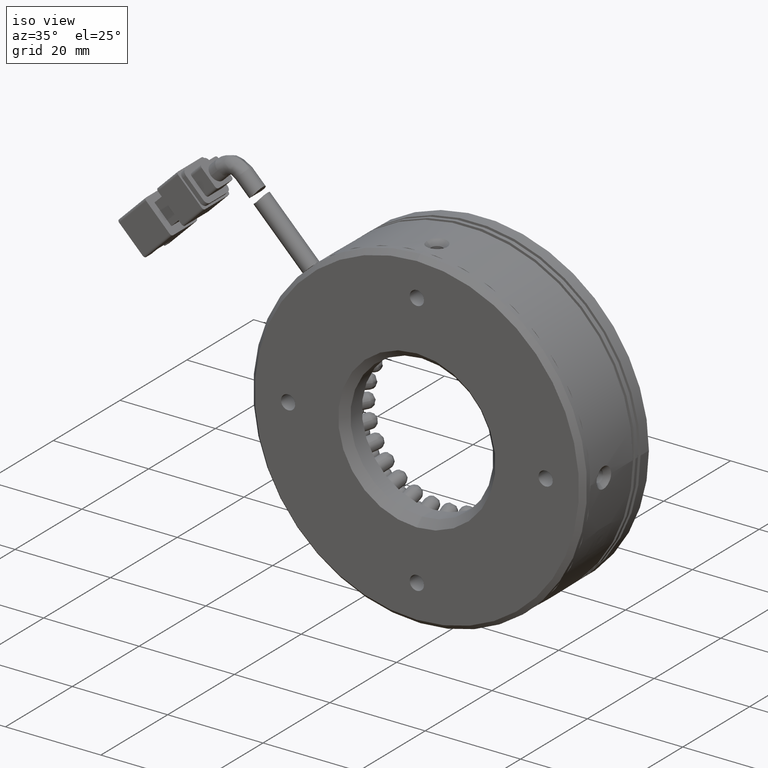
[diagram: clean part render]
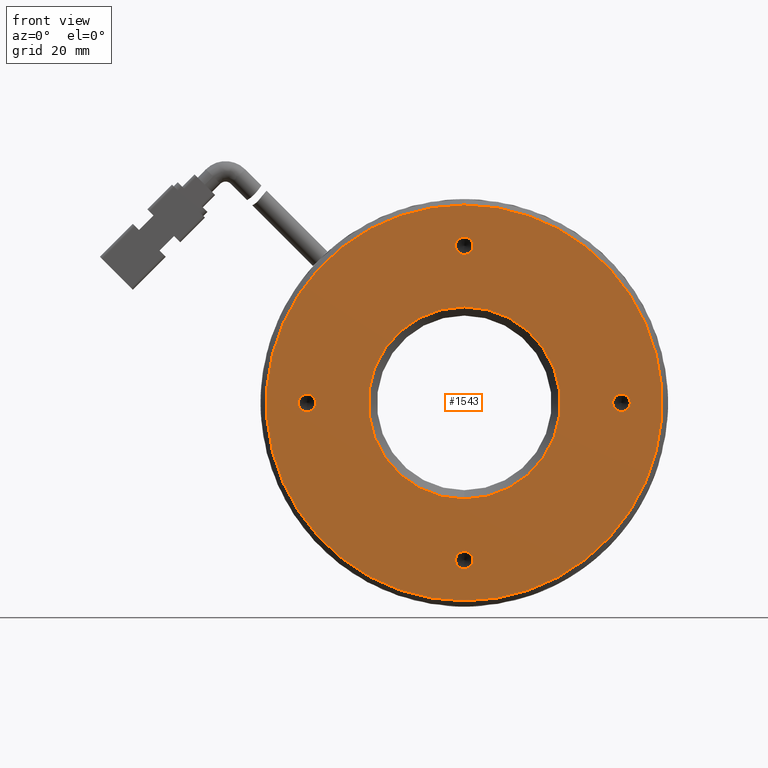
[diagram: tour spotlight — one face highlighted and labeled with its STEP entity id]
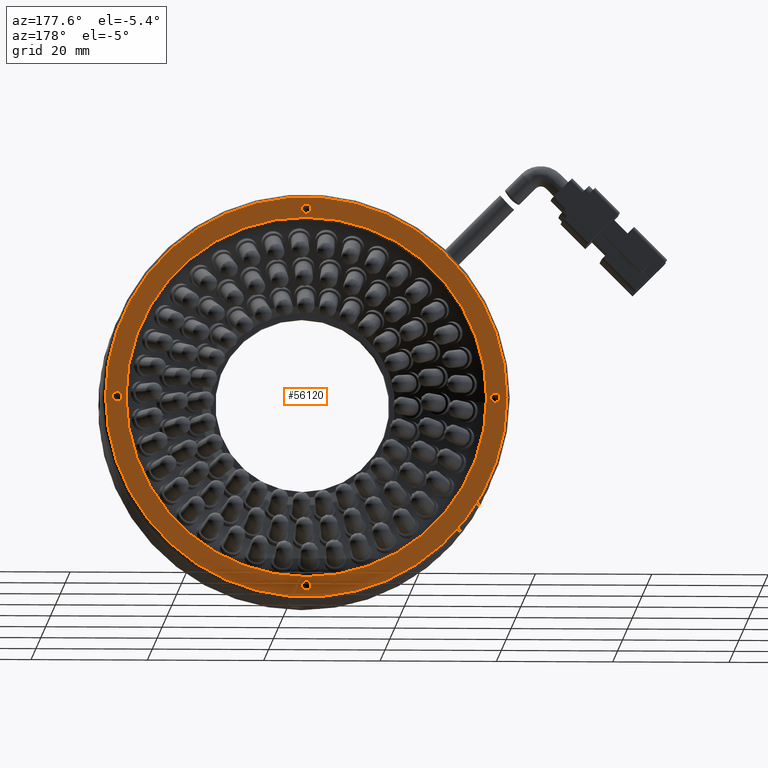
[diagram: tour spotlight — one face highlighted and labeled with its STEP entity id]
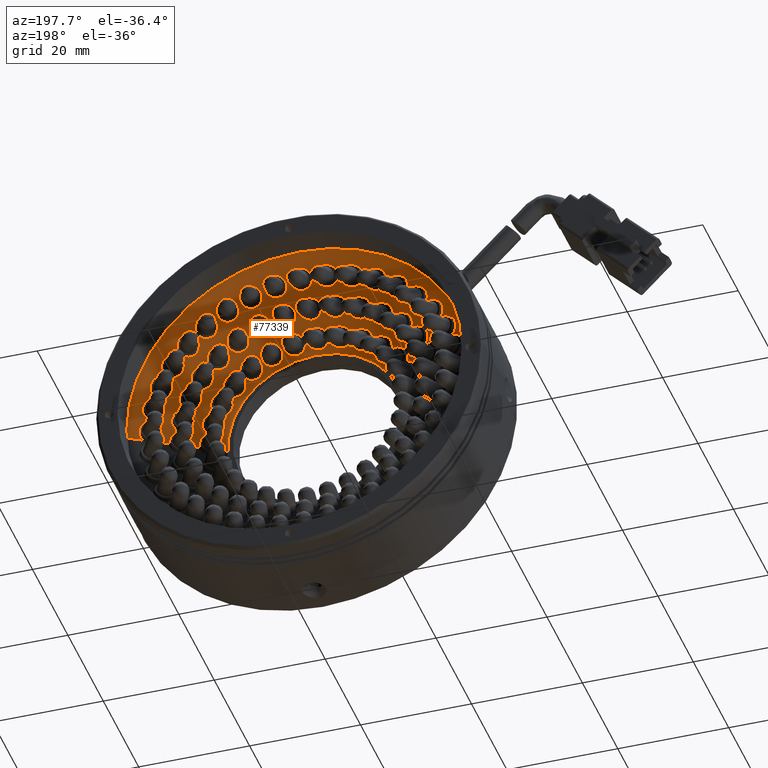
[diagram: tour spotlight — one face highlighted and labeled with its STEP entity id]
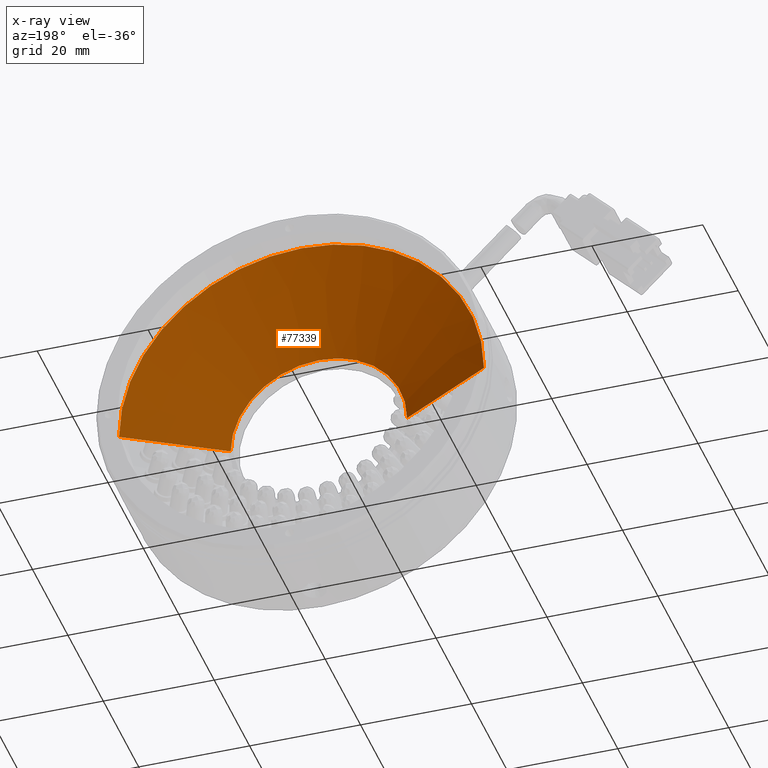
[diagram: x-ray of the same camera — body ghosted, this tour face saturated]
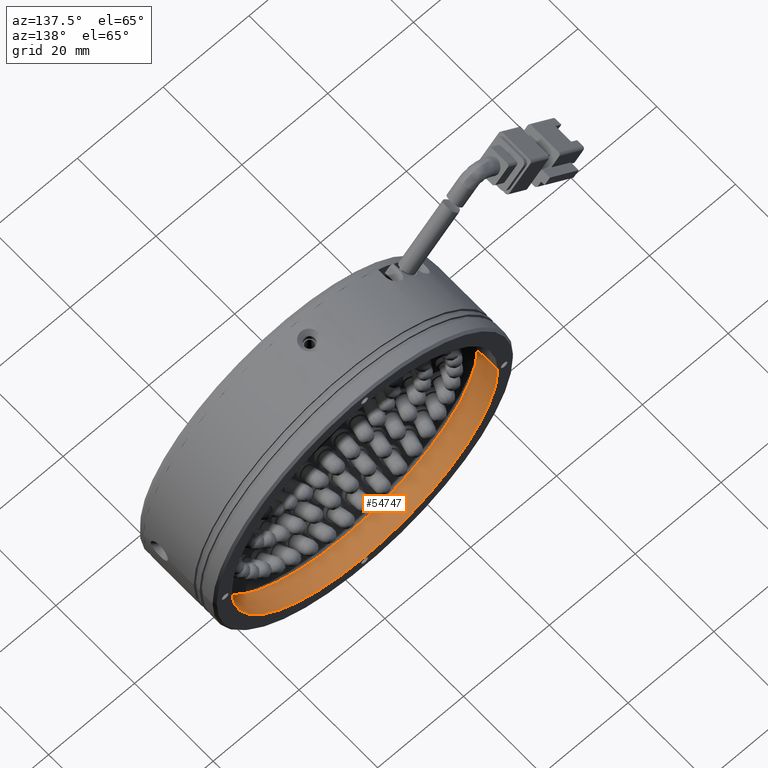
[diagram: tour spotlight — one face highlighted and labeled with its STEP entity id]
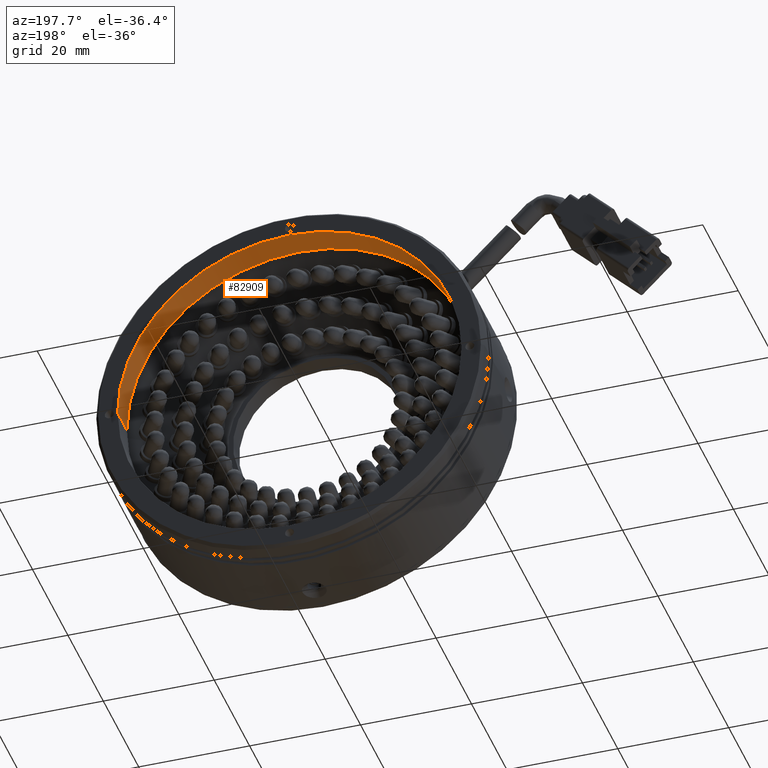
[diagram: tour spotlight — one face highlighted and labeled with its STEP entity id]
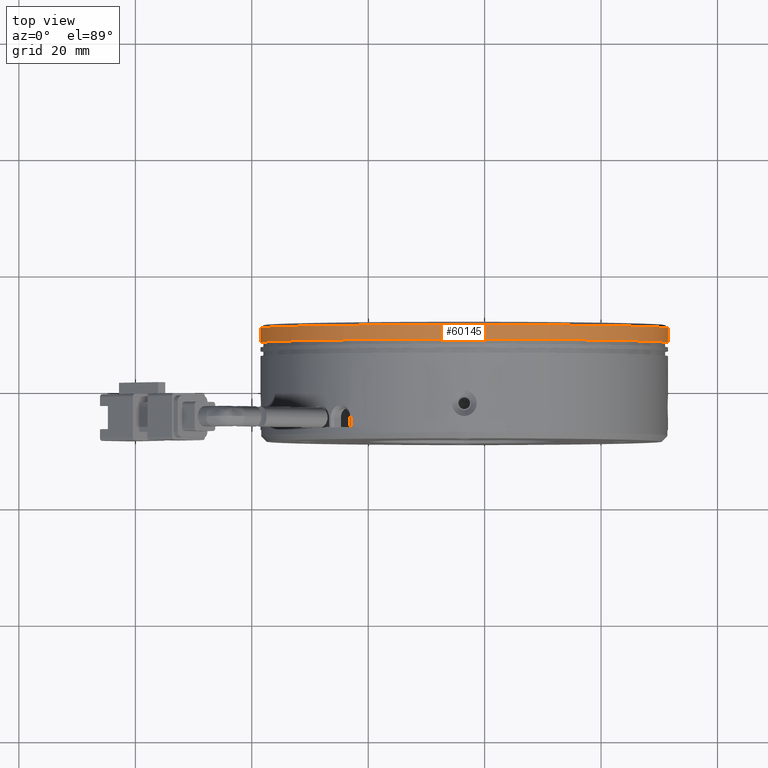
[diagram: tour spotlight — one face highlighted and labeled with its STEP entity id]
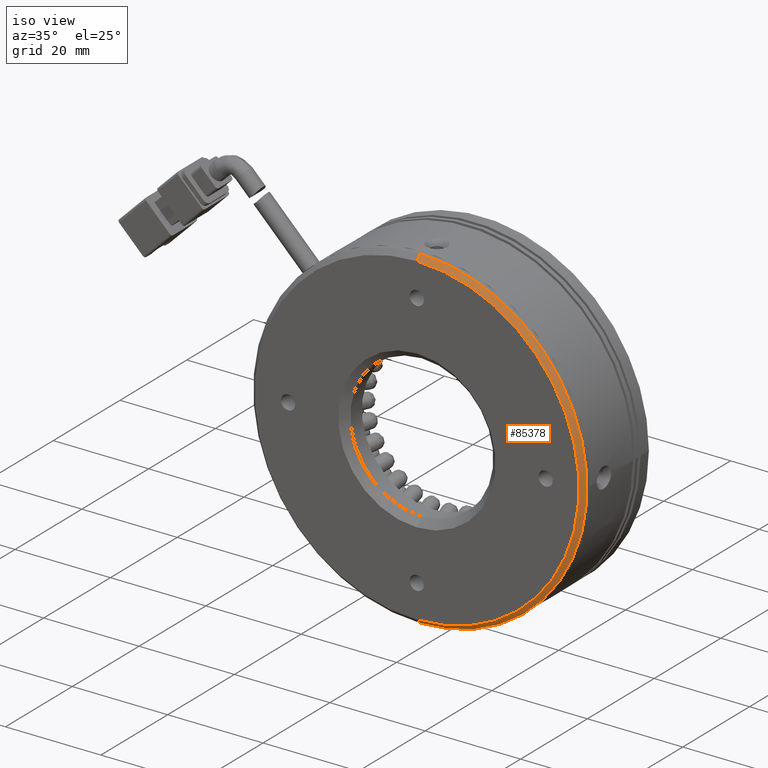
[diagram: tour spotlight — one face highlighted and labeled with its STEP entity id]
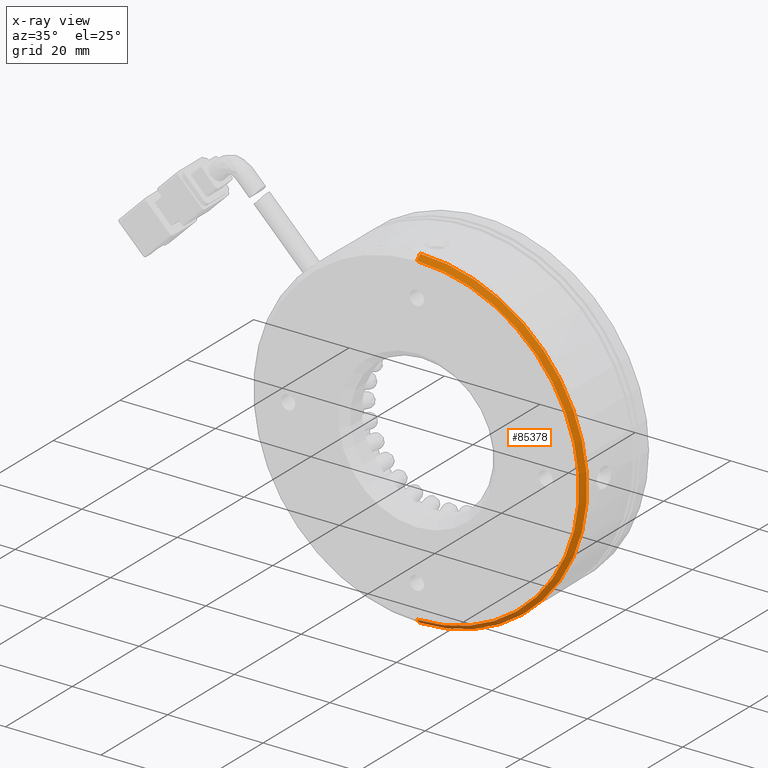
[diagram: x-ray of the same camera — body ghosted, this tour face saturated]
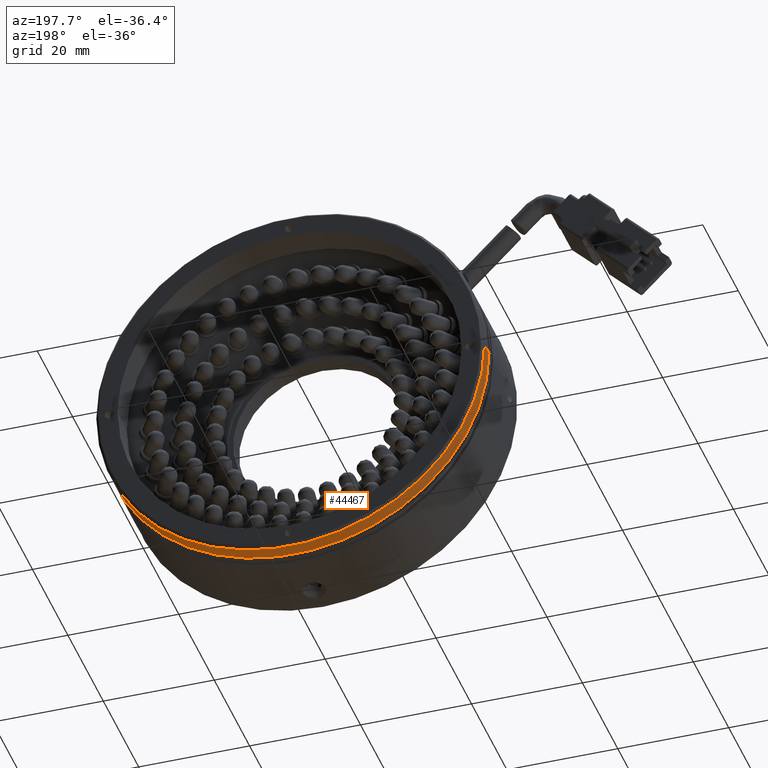
[diagram: tour spotlight — one face highlighted and labeled with its STEP entity id]
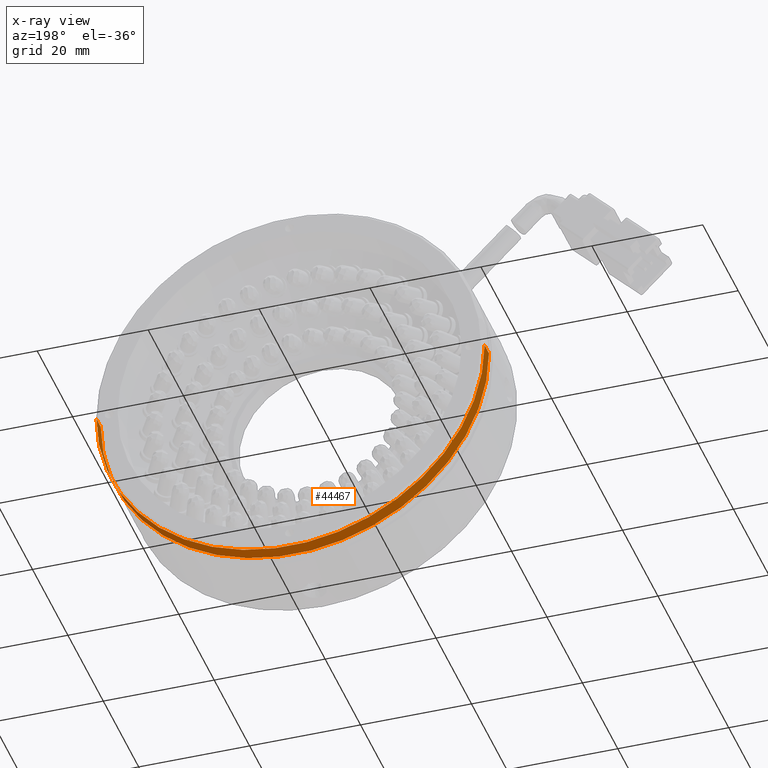
[diagram: x-ray of the same camera — body ghosted, this tour face saturated]
A machine part: a face-by-face anatomy tour. The part has 1954 B-rep faces; the first image is the clean iso view, then the 8 largest visible faces are spotlighted one at a time (largest first), each with its STEP entity span.

Face 1 — front view, entity #1543. In plain terms, the highlighted planar face has unit normal (0, -1, 0).
Definition (entity closure, byte-faithful):
#112 = EDGE_CURVE ( 'NONE', #43990, #50302, #69323, .T. ) ;
#1543 = ADVANCED_FACE ( 'NONE', ( #5520, #59034, #21852, #3327, #75378, #56804 ), #64883, .T. ) ;
#2296 = CARTESIAN_POINT ( 'NONE',  ( -38.49922928709052200, 31.07623868994505800, 0.0000000000000000000 ) ) ;
#3327 = FACE_BOUND ( 'NONE', #22746, .T. ) ;
#3346 = CARTESIAN_POINT ( 'NONE',  ( -30.49922928709055000, 31.07623868994505800, 2.710505431213761100E-017 ) ) ;
#3380 = CARTESIAN_POINT ( 'NONE',  ( -3.499229287090545300, 31.07623868994505800, 27.00000000000000000 ) ) ;
#3947 = DIRECTION ( 'NONE',  ( -0.0000000000000000000, 1.000000000000000000, -0.0000000000000000000 ) ) ;
#5465 = DIRECTION ( 'NONE',  ( 0.0000000000000000000, -1.000000000000000000, -0.0000000000000000000 ) ) ;
#5520 = FACE_BOUND ( 'NONE', #17860, .T. ) ;
#7195 = DIRECTION ( 'NONE',  ( -0.0000000000000000000, 1.000000000000000000, -0.0000000000000000000 ) ) ;
#8481 = EDGE_CURVE ( 'NONE', #56239, #70188, #12562, .T. ) ;
#9340 = DIRECTION ( 'NONE',  ( 0.0000000000000000000, -0.0000000000000000000, -1.000000000000000000 ) ) ;
#10378 = DIRECTION ( 'NONE',  ( 0.0000000000000000000, 0.0000000000000000000, -1.000000000000000000 ) ) ;
#10408 = DIRECTION ( 'NONE',  ( 0.0000000000000000000, 0.0000000000000000000, -1.000000000000000000 ) ) ;
#10466 = VERTEX_POINT ( 'NONE', #24702 ) ;
#10938 = CIRCLE ( 'NONE', #19459, 1.500000000000001300 ) ;
#12562 = CIRCLE ( 'NONE', #74488, 1.499999999999998700 ) ;
#12724 = CARTESIAN_POINT ( 'NONE',  ( -3.499229287090545300, 31.07623868994505800, -27.00000000000000000 ) ) ;
#12830 = EDGE_CURVE ( 'NONE', #82661, #10466, #66394, .T. ) ;
#13396 = ORIENTED_EDGE ( 'NONE', *, *, #33522, .T. ) ;
#13904 = DIRECTION ( 'NONE',  ( 0.0000000000000000000, 1.000000000000000000, 0.0000000000000000000 ) ) ;
#14684 = CARTESIAN_POINT ( 'NONE',  ( 23.50077071290945000, 31.07623868994505800, 1.500000000000001300 ) ) ;
#15289 = AXIS2_PLACEMENT_3D ( 'NONE', #47220, #5465, #54273 ) ;
#16417 = DIRECTION ( 'NONE',  ( 0.0000000000000000000, -1.000000000000000000, -0.0000000000000000000 ) ) ;
#17060 = CIRCLE ( 'NONE', #19999, 1.500000000000001300 ) ;
#17860 = EDGE_LOOP ( 'NONE', ( #62101, #39015 ) ) ;
#19071 = CIRCLE ( 'NONE', #45450, 1.500000000000001300 ) ;
#19459 = AXIS2_PLACEMENT_3D ( 'NONE', #12724, #61593, #19718 ) ;
#19718 = DIRECTION ( 'NONE',  ( 0.0000000000000000000, 0.0000000000000000000, -1.000000000000000000 ) ) ;
#19999 = AXIS2_PLACEMENT_3D ( 'NONE', #81285, #39447, #88258 ) ;
#20134 = EDGE_CURVE ( 'NONE', #10466, #82661, #19071, .T. ) ;
#20280 = EDGE_CURVE ( 'NONE', #70188, #56239, #27737, .T. ) ;
#21305 = CARTESIAN_POINT ( 'NONE',  ( -3.499229287090534200, 31.07623868994505000, -33.99999999999997900 ) ) ;
#21852 = FACE_BOUND ( 'NONE', #74713, .T. ) ;
#22746 = EDGE_LOOP ( 'NONE', ( #79733, #88793 ) ) ;
#22757 = ORIENTED_EDGE ( 'NONE', *, *, #30990, .T. ) ;
#24702 = CARTESIAN_POINT ( 'NONE',  ( 23.50077071290945000, 31.07623868994505800, -1.500000000000001300 ) ) ;
#25645 = CARTESIAN_POINT ( 'NONE',  ( -3.499229287090538600, 31.07623868994505800, -16.50000000000002800 ) ) ;
#26105 = VERTEX_POINT ( 'NONE', #25645 ) ;
#27414 = AXIS2_PLACEMENT_3D ( 'NONE', #2296, #51140, #9340 ) ;
#27737 = CIRCLE ( 'NONE', #53088, 1.499999999999998700 ) ;
#28885 = EDGE_CURVE ( 'NONE', #57185, #71513, #63705, .T. ) ;
#29322 = ORIENTED_EDGE ( 'NONE', *, *, #28885, .T. ) ;
#30990 = EDGE_CURVE ( 'NONE', #71513, #57185, #56039, .T. ) ;
#31460 = EDGE_CURVE ( 'NONE', #32297, #50780, #65738, .T. ) ;
#32297 = VERTEX_POINT ( 'NONE', #43214 ) ;
#33522 = EDGE_CURVE ( 'NONE', #80985, #26105, #34021, .T. ) ;
#34021 = CIRCLE ( 'NONE', #43002, 16.50000000000002800 ) ;
#34893 = CARTESIAN_POINT ( 'NONE',  ( -3.499229287090545300, 31.07623868994505800, 28.50000000000000000 ) ) ;
#35497 = CARTESIAN_POINT ( 'NONE',  ( -3.499229287090545300, 31.07623868994505800, -27.00000000000000000 ) ) ;
#37891 = CIRCLE ( 'NONE', #87340, 16.50000000000002800 ) ;
#38462 = DIRECTION ( 'NONE',  ( 0.0000000000000000000, 1.000000000000000000, 0.0000000000000000000 ) ) ;
#39015 = ORIENTED_EDGE ( 'NONE', *, *, #85526, .T. ) ;
#39447 = DIRECTION ( 'NONE',  ( 0.0000000000000000000, 1.000000000000000000, 0.0000000000000000000 ) ) ;
#40126 = CARTESIAN_POINT ( 'NONE',  ( -3.499229287090545300, 31.07623868994505800, 25.50000000000000000 ) ) ;
#40257 = EDGE_LOOP ( 'NONE', ( #73966, #13396 ) ) ;
#41001 = CARTESIAN_POINT ( 'NONE',  ( -30.49922928709055000, 31.07623868994505800, -1.499999999999998700 ) ) ;
#41259 = CARTESIAN_POINT ( 'NONE',  ( -3.499229287090538600, 31.07623868994505000, 33.99999999999997900 ) ) ;
#41500 = DIRECTION ( 'NONE',  ( 0.0000000000000000000, 1.000000000000000000, 0.0000000000000000000 ) ) ;
#42531 = DIRECTION ( 'NONE',  ( 0.0000000000000000000, 0.0000000000000000000, -1.000000000000000000 ) ) ;
#43002 = AXIS2_PLACEMENT_3D ( 'NONE', #45744, #3947, #52771 ) ;
#43214 = CARTESIAN_POINT ( 'NONE',  ( -3.499229287090545300, 31.07623868994505800, -28.50000000000000000 ) ) ;
#43990 = VERTEX_POINT ( 'NONE', #34893 ) ;
#44380 = EDGE_LOOP ( 'NONE', ( #22757, #29322 ) ) ;
#45450 = AXIS2_PLACEMENT_3D ( 'NONE', #80310, #38462, #87289 ) ;
#45744 = CARTESIAN_POINT ( 'NONE',  ( -3.499229287090538600, 31.07623868994505800, 0.0000000000000000000 ) ) ;
#47220 = CARTESIAN_POINT ( 'NONE',  ( -3.499229287090538600, 31.07623868994505000, 0.0000000000000000000 ) ) ;
#47708 = CARTESIAN_POINT ( 'NONE',  ( -3.499229287090538600, 31.07623868994505800, 0.0000000000000000000 ) ) ;
#50302 = VERTEX_POINT ( 'NONE', #40126 ) ;
#50686 = CARTESIAN_POINT ( 'NONE',  ( -30.49922928709055000, 31.07623868994505800, 1.499999999999998700 ) ) ;
#50780 = VERTEX_POINT ( 'NONE', #73363 ) ;
#51140 = DIRECTION ( 'NONE',  ( 0.0000000000000000000, -1.000000000000000000, 0.0000000000000000000 ) ) ;
#51330 = ORIENTED_EDGE ( 'NONE', *, *, #12830, .T. ) ;
#52192 = DIRECTION ( 'NONE',  ( 0.0000000000000000000, 1.000000000000000000, 0.0000000000000000000 ) ) ;
#52220 = DIRECTION ( 'NONE',  ( 0.0000000000000000000, 1.000000000000000000, 0.0000000000000000000 ) ) ;
#52771 = DIRECTION ( 'NONE',  ( 0.0000000000000000000, 0.0000000000000000000, -1.000000000000000000 ) ) ;
#53088 = AXIS2_PLACEMENT_3D ( 'NONE', #83289, #41500, #90326 ) ;
#54273 = DIRECTION ( 'NONE',  ( 0.0000000000000000000, 0.0000000000000000000, 1.000000000000000000 ) ) ;
#55689 = CARTESIAN_POINT ( 'NONE',  ( 23.50077071290945000, 31.07623868994505800, 0.0000000000000000000 ) ) ;
#55976 = DIRECTION ( 'NONE',  ( 0.0000000000000000000, 0.0000000000000000000, -1.000000000000000000 ) ) ;
#56039 = CIRCLE ( 'NONE', #74282, 33.99999999999997900 ) ;
#56239 = VERTEX_POINT ( 'NONE', #41001 ) ;
#56804 = FACE_OUTER_BOUND ( 'NONE', #44380, .T. ) ;
#57185 = VERTEX_POINT ( 'NONE', #21305 ) ;
#58233 = CARTESIAN_POINT ( 'NONE',  ( -3.499229287090538600, 31.07623868994505000, 0.0000000000000000000 ) ) ;
#58900 = CARTESIAN_POINT ( 'NONE',  ( -3.499229287090536400, 31.07623868994505800, 16.50000000000002800 ) ) ;
#59034 = FACE_BOUND ( 'NONE', #65905, .T. ) ;
#59832 = AXIS2_PLACEMENT_3D ( 'NONE', #55689, #13904, #62736 ) ;
#61593 = DIRECTION ( 'NONE',  ( 0.0000000000000000000, 1.000000000000000000, 0.0000000000000000000 ) ) ;
#62101 = ORIENTED_EDGE ( 'NONE', *, *, #31460, .T. ) ;
#62736 = DIRECTION ( 'NONE',  ( 0.0000000000000000000, 0.0000000000000000000, -1.000000000000000000 ) ) ;
#63705 = CIRCLE ( 'NONE', #15289, 33.99999999999997900 ) ;
#64883 = PLANE ( 'NONE',  #27414 ) ;
#65253 = DIRECTION ( 'NONE',  ( 0.0000000000000000000, 0.0000000000000000000, 1.000000000000000000 ) ) ;
#65738 = CIRCLE ( 'NONE', #78456, 1.500000000000001300 ) ;
#65905 = EDGE_LOOP ( 'NONE', ( #82463, #74840 ) ) ;
#66394 = CIRCLE ( 'NONE', #59832, 1.500000000000001300 ) ;
#69323 = CIRCLE ( 'NONE', #81291, 1.500000000000001300 ) ;
#70188 = VERTEX_POINT ( 'NONE', #50686 ) ;
#71513 = VERTEX_POINT ( 'NONE', #41259 ) ;
#73363 = CARTESIAN_POINT ( 'NONE',  ( -3.499229287090545300, 31.07623868994505800, -25.50000000000000000 ) ) ;
#73966 = ORIENTED_EDGE ( 'NONE', *, *, #82100, .T. ) ;
#74282 = AXIS2_PLACEMENT_3D ( 'NONE', #58233, #16417, #65253 ) ;
#74488 = AXIS2_PLACEMENT_3D ( 'NONE', #3346, #52192, #10378 ) ;
#74713 = EDGE_LOOP ( 'NONE', ( #74866, #51330 ) ) ;
#74840 = ORIENTED_EDGE ( 'NONE', *, *, #112, .T. ) ;
#74866 = ORIENTED_EDGE ( 'NONE', *, *, #20134, .T. ) ;
#75378 = FACE_BOUND ( 'NONE', #40257, .T. ) ;
#78456 = AXIS2_PLACEMENT_3D ( 'NONE', #35497, #84294, #42531 ) ;
#79733 = ORIENTED_EDGE ( 'NONE', *, *, #8481, .T. ) ;
#80310 = CARTESIAN_POINT ( 'NONE',  ( 23.50077071290945000, 31.07623868994505800, 0.0000000000000000000 ) ) ;
#80985 = VERTEX_POINT ( 'NONE', #58900 ) ;
#81285 = CARTESIAN_POINT ( 'NONE',  ( -3.499229287090545300, 31.07623868994505800, 27.00000000000000000 ) ) ;
#81291 = AXIS2_PLACEMENT_3D ( 'NONE', #3380, #52220, #10408 ) ;
#82100 = EDGE_CURVE ( 'NONE', #26105, #80985, #37891, .T. ) ;
#82463 = ORIENTED_EDGE ( 'NONE', *, *, #89513, .T. ) ;
#82661 = VERTEX_POINT ( 'NONE', #14684 ) ;
#83289 = CARTESIAN_POINT ( 'NONE',  ( -30.49922928709055000, 31.07623868994505800, 2.710505431213761100E-017 ) ) ;
#84294 = DIRECTION ( 'NONE',  ( 0.0000000000000000000, 1.000000000000000000, 0.0000000000000000000 ) ) ;
#85526 = EDGE_CURVE ( 'NONE', #50780, #32297, #10938, .T. ) ;
#87289 = DIRECTION ( 'NONE',  ( 0.0000000000000000000, 0.0000000000000000000, -1.000000000000000000 ) ) ;
#87340 = AXIS2_PLACEMENT_3D ( 'NONE', #47708, #7195, #55976 ) ;
#88258 = DIRECTION ( 'NONE',  ( 0.0000000000000000000, 0.0000000000000000000, -1.000000000000000000 ) ) ;
#88793 = ORIENTED_EDGE ( 'NONE', *, *, #20280, .T. ) ;
#89513 = EDGE_CURVE ( 'NONE', #50302, #43990, #17060, .T. ) ;
#90326 = DIRECTION ( 'NONE',  ( 0.0000000000000000000, 0.0000000000000000000, -1.000000000000000000 ) ) ;

Face 2 — auxiliary view, entity #56120. In plain terms, the highlighted planar face has unit normal (0, 1, 0).
Definition (entity closure, byte-faithful):
#37 = VERTEX_POINT ( 'NONE', #15623 ) ;
#90 = AXIS2_PLACEMENT_3D ( 'NONE', #29187, #78051, #36204 ) ;
#998 = AXIS2_PLACEMENT_3D ( 'NONE', #53852, #12038, #60928 ) ;
#3735 = VERTEX_POINT ( 'NONE', #48608 ) ;
#3835 = FACE_BOUND ( 'NONE', #89631, .T. ) ;
#3916 = DIRECTION ( 'NONE',  ( 0.0000000000000000000, 1.000000000000000000, -0.0000000000000000000 ) ) ;
#4093 = CIRCLE ( 'NONE', #90, 0.7999999999999947200 ) ;
#5195 = VERTEX_POINT ( 'NONE', #79285 ) ;
#6041 = CARTESIAN_POINT ( 'NONE',  ( -3.499229287090496400, 51.07623868994505800, -6.938893903907228400E-015 ) ) ;
#6805 = ORIENTED_EDGE ( 'NONE', *, *, #53626, .T. ) ;
#7568 = AXIS2_PLACEMENT_3D ( 'NONE', #28944, #77793, #35950 ) ;
#8068 = DIRECTION ( 'NONE',  ( -0.0000000000000000000, -1.000000000000000000, -0.0000000000000000000 ) ) ;
#11691 = VERTEX_POINT ( 'NONE', #47396 ) ;
#12038 = DIRECTION ( 'NONE',  ( 0.0000000000000000000, 1.000000000000000000, 0.0000000000000000000 ) ) ;
#12049 = AXIS2_PLACEMENT_3D ( 'NONE', #81410, #39551, #88365 ) ;
#12550 = DIRECTION ( 'NONE',  ( -0.0000000000000000000, -1.000000000000000000, -0.0000000000000000000 ) ) ;
#12825 = VERTEX_POINT ( 'NONE', #69150 ) ;
#13029 = DIRECTION ( 'NONE',  ( 1.000000000000000000, 0.0000000000000000000, 1.942890293094023700E-016 ) ) ;
#13227 = AXIS2_PLACEMENT_3D ( 'NONE', #61668, #19794, #68668 ) ;
#15401 = EDGE_CURVE ( 'NONE', #12825, #5195, #83148, .T. ) ;
#15465 = VERTEX_POINT ( 'NONE', #62197 ) ;
#15623 = CARTESIAN_POINT ( 'NONE',  ( -35.19922928709050300, 51.07623868994505800, 1.043368115259877400E-013 ) ) ;
#16320 = DIRECTION ( 'NONE',  ( -0.0000000000000000000, -1.000000000000000000, -0.0000000000000000000 ) ) ;
#19794 = DIRECTION ( 'NONE',  ( -0.0000000000000000000, -1.000000000000000000, -0.0000000000000000000 ) ) ;
#22370 = CIRCLE ( 'NONE', #7568, 0.7999999999999986000 ) ;
#22380 = FACE_BOUND ( 'NONE', #54234, .T. ) ;
#22563 = ORIENTED_EDGE ( 'NONE', *, *, #26687, .T. ) ;
#24027 = EDGE_CURVE ( 'NONE', #5195, #12825, #78375, .T. ) ;
#24606 = FACE_BOUND ( 'NONE', #67338, .T. ) ;
#26464 = EDGE_LOOP ( 'NONE', ( #81498, #85295 ) ) ;
#26687 = EDGE_CURVE ( 'NONE', #78505, #37, #35057, .T. ) ;
#26867 = CARTESIAN_POINT ( 'NONE',  ( -3.499229287090496400, 51.07623868994505800, -6.938893903907228400E-015 ) ) ;
#27630 = CIRCLE ( 'NONE', #80990, 0.7999999999999986000 ) ;
#27775 = CIRCLE ( 'NONE', #59408, 0.7999999999999951600 ) ;
#27900 = CARTESIAN_POINT ( 'NONE',  ( -35.99922928709050000, 51.07623868994505800, 1.040834085586084300E-013 ) ) ;
#28944 = CARTESIAN_POINT ( 'NONE',  ( -3.499229287090489700, 51.07623868994505800, -32.50000000000000700 ) ) ;
#29187 = CARTESIAN_POINT ( 'NONE',  ( -3.499229287090502200, 51.07623868994505800, 32.49999999999998600 ) ) ;
#31046 = AXIS2_PLACEMENT_3D ( 'NONE', #45698, #3916, #52739 ) ;
#31095 = VERTEX_POINT ( 'NONE', #73163 ) ;
#31351 = CARTESIAN_POINT ( 'NONE',  ( -4.299229287090488700, 51.07623868994505800, -32.50000000000000700 ) ) ;
#32721 = EDGE_CURVE ( 'NONE', #34055, #31095, #59577, .T. ) ;
#33195 = EDGE_CURVE ( 'NONE', #79341, #40263, #27630, .T. ) ;
#33460 = CARTESIAN_POINT ( 'NONE',  ( -36.79922928709049000, 51.07623868994505800, 1.039279773351609100E-013 ) ) ;
#33873 = DIRECTION ( 'NONE',  ( -1.000000000000000000, 0.0000000000000000000, -1.942890293094023700E-016 ) ) ;
#33886 = ORIENTED_EDGE ( 'NONE', *, *, #69246, .T. ) ;
#34055 = VERTEX_POINT ( 'NONE', #66121 ) ;
#34447 = EDGE_LOOP ( 'NONE', ( #22563, #85866 ) ) ;
#34899 = AXIS2_PLACEMENT_3D ( 'NONE', #58130, #16320, #65152 ) ;
#34904 = DIRECTION ( 'NONE',  ( -1.000000000000000000, 0.0000000000000000000, -1.942890293093975900E-016 ) ) ;
#35057 = CIRCLE ( 'NONE', #12049, 0.7999999999999951600 ) ;
#35950 = DIRECTION ( 'NONE',  ( -1.000000000000000000, 0.0000000000000000000, 0.0000000000000000000 ) ) ;
#36204 = DIRECTION ( 'NONE',  ( -1.000000000000000000, 0.0000000000000000000, 0.0000000000000000000 ) ) ;
#37929 = AXIS2_PLACEMENT_3D ( 'NONE', #26867, #75709, #33873 ) ;
#39551 = DIRECTION ( 'NONE',  ( -0.0000000000000000000, -1.000000000000000000, -0.0000000000000000000 ) ) ;
#40263 = VERTEX_POINT ( 'NONE', #87922 ) ;
#40915 = FACE_BOUND ( 'NONE', #34447, .T. ) ;
#41505 = CARTESIAN_POINT ( 'NONE',  ( -3.499229287090489700, 51.07623868994505800, -32.50000000000000700 ) ) ;
#42235 = EDGE_LOOP ( 'NONE', ( #33886, #68371 ) ) ;
#42257 = CIRCLE ( 'NONE', #13227, 31.00000000000000000 ) ;
#45698 = CARTESIAN_POINT ( 'NONE',  ( -3.499229287090496400, 51.07623868994505800, -6.938893903907228400E-015 ) ) ;
#46389 = EDGE_CURVE ( 'NONE', #37, #78505, #81305, .T. ) ;
#46580 = EDGE_CURVE ( 'NONE', #3735, #15465, #60501, .T. ) ;
#47396 = CARTESIAN_POINT ( 'NONE',  ( -34.49922928709049300, 51.07623868994505800, -1.296185381249870100E-014 ) ) ;
#48518 = DIRECTION ( 'NONE',  ( -1.000000000000000000, 0.0000000000000000000, 0.0000000000000000000 ) ) ;
#48608 = CARTESIAN_POINT ( 'NONE',  ( -4.299229287090496700, 51.07623868994505800, 32.49999999999998600 ) ) ;
#49851 = CARTESIAN_POINT ( 'NONE',  ( 29.00077071290950300, 51.07623868994505800, -3.330669073875469600E-013 ) ) ;
#51614 = EDGE_CURVE ( 'NONE', #40263, #79341, #22370, .T. ) ;
#52739 = DIRECTION ( 'NONE',  ( 1.000000000000000000, 0.0000000000000000000, 1.942890293094023700E-016 ) ) ;
#53626 = EDGE_CURVE ( 'NONE', #15465, #3735, #4093, .T. ) ;
#53852 = CARTESIAN_POINT ( 'NONE',  ( -3.499229287090489300, 51.07623868994505800, -35.00000000000001400 ) ) ;
#54234 = EDGE_LOOP ( 'NONE', ( #66158, #55224 ) ) ;
#54376 = CARTESIAN_POINT ( 'NONE',  ( 29.00077071290950300, 51.07623868994505800, -3.330669073875469600E-013 ) ) ;
#54836 = DIRECTION ( 'NONE',  ( 0.0000000000000000000, 1.000000000000000000, -0.0000000000000000000 ) ) ;
#55224 = ORIENTED_EDGE ( 'NONE', *, *, #64337, .T. ) ;
#56120 = ADVANCED_FACE ( 'NONE', ( #22380, #78096, #24606, #40915, #3835, #75882 ), #60632, .T. ) ;
#56445 = VERTEX_POINT ( 'NONE', #78834 ) ;
#56853 = DIRECTION ( 'NONE',  ( -1.000000000000000000, 0.0000000000000000000, -1.942890293093821800E-016 ) ) ;
#58130 = CARTESIAN_POINT ( 'NONE',  ( -3.499229287090502200, 51.07623868994505800, 32.49999999999998600 ) ) ;
#58138 = AXIS2_PLACEMENT_3D ( 'NONE', #49851, #8068, #56853 ) ;
#58514 = ORIENTED_EDGE ( 'NONE', *, *, #51614, .T. ) ;
#59408 = AXIS2_PLACEMENT_3D ( 'NONE', #54376, #12550, #61438 ) ;
#59577 = CIRCLE ( 'NONE', #58138, 0.7999999999999951600 ) ;
#60501 = CIRCLE ( 'NONE', #34899, 0.7999999999999947200 ) ;
#60632 = PLANE ( 'NONE',  #998 ) ;
#60928 = DIRECTION ( 'NONE',  ( -1.000000000000000000, 0.0000000000000000000, -1.942890293094023500E-016 ) ) ;
#61438 = DIRECTION ( 'NONE',  ( -1.000000000000000000, 0.0000000000000000000, -1.942890293093821800E-016 ) ) ;
#61668 = CARTESIAN_POINT ( 'NONE',  ( -3.499229287090496400, 51.07623868994505800, -6.938893903907228400E-015 ) ) ;
#61847 = AXIS2_PLACEMENT_3D ( 'NONE', #27900, #76759, #34904 ) ;
#62197 = CARTESIAN_POINT ( 'NONE',  ( -2.699229287090507200, 51.07623868994505800, 32.49999999999998600 ) ) ;
#64337 = EDGE_CURVE ( 'NONE', #56445, #11691, #42257, .T. ) ;
#65152 = DIRECTION ( 'NONE',  ( -1.000000000000000000, 0.0000000000000000000, 0.0000000000000000000 ) ) ;
#66121 = CARTESIAN_POINT ( 'NONE',  ( 29.80077071290950000, 51.07623868994505800, -3.328135044201676600E-013 ) ) ;
#66158 = ORIENTED_EDGE ( 'NONE', *, *, #80644, .T. ) ;
#67338 = EDGE_LOOP ( 'NONE', ( #87439, #58514 ) ) ;
#68371 = ORIENTED_EDGE ( 'NONE', *, *, #32721, .T. ) ;
#68668 = DIRECTION ( 'NONE',  ( -1.000000000000000000, 0.0000000000000000000, -1.942890293094023700E-016 ) ) ;
#68843 = AXIS2_PLACEMENT_3D ( 'NONE', #6041, #54836, #13029 ) ;
#69150 = CARTESIAN_POINT ( 'NONE',  ( 31.00077071290950700, 51.07623868994505800, -2.359223927328467500E-016 ) ) ;
#69246 = EDGE_CURVE ( 'NONE', #31095, #34055, #27775, .T. ) ;
#73163 = CARTESIAN_POINT ( 'NONE',  ( 28.20077071290951000, 51.07623868994505800, -3.332223386109944400E-013 ) ) ;
#75709 = DIRECTION ( 'NONE',  ( -0.0000000000000000000, -1.000000000000000000, -0.0000000000000000000 ) ) ;
#75882 = FACE_BOUND ( 'NONE', #42235, .T. ) ;
#76759 = DIRECTION ( 'NONE',  ( -0.0000000000000000000, -1.000000000000000000, -0.0000000000000000000 ) ) ;
#77793 = DIRECTION ( 'NONE',  ( -0.0000000000000000000, -1.000000000000000000, -0.0000000000000000000 ) ) ;
#77982 = CIRCLE ( 'NONE', #37929, 31.00000000000000000 ) ;
#78051 = DIRECTION ( 'NONE',  ( -0.0000000000000000000, -1.000000000000000000, -0.0000000000000000000 ) ) ;
#78096 = FACE_OUTER_BOUND ( 'NONE', #26464, .T. ) ;
#78375 = CIRCLE ( 'NONE', #31046, 34.50000000000000000 ) ;
#78505 = VERTEX_POINT ( 'NONE', #33460 ) ;
#78834 = CARTESIAN_POINT ( 'NONE',  ( 27.50077071290950300, 51.07623868994505800, 2.880471082041037800E-015 ) ) ;
#79285 = CARTESIAN_POINT ( 'NONE',  ( -37.99922928709050000, 51.07623868994505800, -9.434790045371908900E-015 ) ) ;
#79341 = VERTEX_POINT ( 'NONE', #31351 ) ;
#80644 = EDGE_CURVE ( 'NONE', #11691, #56445, #77982, .T. ) ;
#80990 = AXIS2_PLACEMENT_3D ( 'NONE', #41505, #90332, #48518 ) ;
#81305 = CIRCLE ( 'NONE', #61847, 0.7999999999999951600 ) ;
#81410 = CARTESIAN_POINT ( 'NONE',  ( -35.99922928709050000, 51.07623868994505800, 1.040834085586084300E-013 ) ) ;
#81498 = ORIENTED_EDGE ( 'NONE', *, *, #15401, .T. ) ;
#83148 = CIRCLE ( 'NONE', #68843, 34.50000000000000000 ) ;
#85295 = ORIENTED_EDGE ( 'NONE', *, *, #24027, .T. ) ;
#85866 = ORIENTED_EDGE ( 'NONE', *, *, #46389, .T. ) ;
#87439 = ORIENTED_EDGE ( 'NONE', *, *, #33195, .T. ) ;
#87922 = CARTESIAN_POINT ( 'NONE',  ( -2.699229287090490800, 51.07623868994505800, -32.50000000000000700 ) ) ;
#88365 = DIRECTION ( 'NONE',  ( -1.000000000000000000, 0.0000000000000000000, -1.942890293093975900E-016 ) ) ;
#89631 = EDGE_LOOP ( 'NONE', ( #90400, #6805 ) ) ;
#90332 = DIRECTION ( 'NONE',  ( -0.0000000000000000000, -1.000000000000000000, -0.0000000000000000000 ) ) ;
#90400 = ORIENTED_EDGE ( 'NONE', *, *, #46580, .T. ) ;

Face 3 — auxiliary view, entity #77339. An x-ray twin of the same camera follows (body ghosted, this face saturated) — the face is partly hidden behind the body. In plain terms, the highlighted conical surface has half-angle 60 deg.
Definition (entity closure, byte-faithful):
#3128 = ORIENTED_EDGE ( 'NONE', *, *, #87427, .F. ) ;
#6250 = EDGE_CURVE ( 'NONE', #36733, #78470, #57803, .T. ) ;
#10082 = EDGE_CURVE ( 'NONE', #18679, #87098, #72253, .T. ) ;
#12681 = VERTEX_POINT ( 'NONE', #60663 ) ;
#18679 = VERTEX_POINT ( 'NONE', #28970 ) ;
#20032 = AXIS2_PLACEMENT_3D ( 'NONE', #46472, #53521, #87674 ) ;
#20190 = VERTEX_POINT ( 'NONE', #66612 ) ;
#20477 = CARTESIAN_POINT ( 'NONE',  ( 29.40077071290951600, 44.33345823924977900, 4.029087969194793600E-015 ) ) ;
#21532 = CARTESIAN_POINT ( 'NONE',  ( 29.40077071290951600, 44.33345823924977900, 4.029087969194793600E-015 ) ) ;
#22043 = VECTOR ( 'NONE', #28552, 999.9999999999998900 ) ;
#27431 = AXIS2_PLACEMENT_3D ( 'NONE', #82849, #41049, #89862 ) ;
#28552 = DIRECTION ( 'NONE',  ( 0.8660254037844380400, 0.5000000000000012200, 1.060575238724906200E-016 ) ) ;
#28610 = ORIENTED_EDGE ( 'NONE', *, *, #49091, .F. ) ;
#28970 = CARTESIAN_POINT ( 'NONE',  ( -3.499229287090495100, 34.51850366302609500, 15.90000000000000000 ) ) ;
#30615 = CARTESIAN_POINT ( 'NONE',  ( -3.499229287090496900, 34.51850366302609500, 0.0000000000000000000 ) ) ;
#35050 = CARTESIAN_POINT ( 'NONE',  ( -3.499229287090496900, 34.51850366302609500, 0.0000000000000000000 ) ) ;
#36119 = CARTESIAN_POINT ( 'NONE',  ( -3.499229287090496900, 44.33345823924977900, 0.0000000000000000000 ) ) ;
#36733 = VERTEX_POINT ( 'NONE', #20477 ) ;
#37615 = DIRECTION ( 'NONE',  ( 0.0000000000000000000, 0.0000000000000000000, -1.000000000000000000 ) ) ;
#38041 = CONICAL_SURFACE ( 'NONE', #20032, 32.90000000000001300, 1.047197551196596300 ) ;
#39828 = CIRCLE ( 'NONE', #46934, 32.90000000000001300 ) ;
#41049 = DIRECTION ( 'NONE',  ( 0.0000000000000000000, -1.000000000000000000, 0.0000000000000000000 ) ) ;
#41172 = LINE ( 'NONE', #53858, #88099 ) ;
#42098 = DIRECTION ( 'NONE',  ( 0.0000000000000000000, 0.0000000000000000000, -1.000000000000000000 ) ) ;
#43179 = DIRECTION ( 'NONE',  ( 0.0000000000000000000, 0.0000000000000000000, -1.000000000000000000 ) ) ;
#43681 = ORIENTED_EDGE ( 'NONE', *, *, #6250, .F. ) ;
#46472 = CARTESIAN_POINT ( 'NONE',  ( -3.499229287090496900, 44.33345823924977900, 0.0000000000000000000 ) ) ;
#46934 = AXIS2_PLACEMENT_3D ( 'NONE', #36119, #84936, #43179 ) ;
#47208 = ORIENTED_EDGE ( 'NONE', *, *, #10082, .T. ) ;
#49091 = EDGE_CURVE ( 'NONE', #78470, #12681, #39828, .T. ) ;
#53359 = CARTESIAN_POINT ( 'NONE',  ( -3.499229287090492900, 44.33345823924977900, 32.90000000000001300 ) ) ;
#53521 = DIRECTION ( 'NONE',  ( 2.636357866226149200E-017, 1.000000000000000000, 0.0000000000000000000 ) ) ;
#53858 = CARTESIAN_POINT ( 'NONE',  ( -36.39922928709050600, 44.33345823924977900, 0.0000000000000000000 ) ) ;
#54326 = ORIENTED_EDGE ( 'NONE', *, *, #83506, .T. ) ;
#57022 = EDGE_LOOP ( 'NONE', ( #3128, #69223, #47208, #54326, #28610, #43681 ) ) ;
#57803 = CIRCLE ( 'NONE', #27431, 32.90000000000001300 ) ;
#59234 = LINE ( 'NONE', #21532, #22043 ) ;
#60663 = CARTESIAN_POINT ( 'NONE',  ( -36.39922928709050600, 44.33345823924977900, 0.0000000000000000000 ) ) ;
#60852 = AXIS2_PLACEMENT_3D ( 'NONE', #30615, #79482, #37615 ) ;
#60934 = DIRECTION ( 'NONE',  ( -0.8660254037844380400, 0.5000000000000012200, 0.0000000000000000000 ) ) ;
#66612 = CARTESIAN_POINT ( 'NONE',  ( 12.40077071290950400, 34.51850366302609500, 2.988138189919542900E-015 ) ) ;
#67423 = EDGE_CURVE ( 'NONE', #20190, #18679, #84016, .T. ) ;
#69223 = ORIENTED_EDGE ( 'NONE', *, *, #67423, .T. ) ;
#72253 = CIRCLE ( 'NONE', #83872, 15.90000000000000000 ) ;
#72920 = CARTESIAN_POINT ( 'NONE',  ( -19.39922928709049900, 34.51850366302609500, 0.0000000000000000000 ) ) ;
#77339 = ADVANCED_FACE ( 'NONE', ( #77397 ), #38041, .F. ) ;
#77397 = FACE_OUTER_BOUND ( 'NONE', #57022, .T. ) ;
#78470 = VERTEX_POINT ( 'NONE', #53359 ) ;
#79482 = DIRECTION ( 'NONE',  ( 0.0000000000000000000, -1.000000000000000000, 0.0000000000000000000 ) ) ;
#82849 = CARTESIAN_POINT ( 'NONE',  ( -3.499229287090496900, 44.33345823924977900, 0.0000000000000000000 ) ) ;
#83506 = EDGE_CURVE ( 'NONE', #87098, #12681, #41172, .T. ) ;
#83859 = DIRECTION ( 'NONE',  ( 0.0000000000000000000, -1.000000000000000000, 0.0000000000000000000 ) ) ;
#83872 = AXIS2_PLACEMENT_3D ( 'NONE', #35050, #83859, #42098 ) ;
#84016 = CIRCLE ( 'NONE', #60852, 15.90000000000000000 ) ;
#84936 = DIRECTION ( 'NONE',  ( 0.0000000000000000000, -1.000000000000000000, 0.0000000000000000000 ) ) ;
#87098 = VERTEX_POINT ( 'NONE', #72920 ) ;
#87427 = EDGE_CURVE ( 'NONE', #20190, #36733, #59234, .T. ) ;
#87674 = DIRECTION ( 'NONE',  ( -1.000000000000000000, 0.0000000000000000000, 0.0000000000000000000 ) ) ;
#88099 = VECTOR ( 'NONE', #60934, 999.9999999999998900 ) ;
#89862 = DIRECTION ( 'NONE',  ( 0.0000000000000000000, 0.0000000000000000000, -1.000000000000000000 ) ) ;

Face 4 — auxiliary view, entity #54747. In plain terms, the highlighted cylindrical surface (partial cylindrical patch) has radius 31 mm, axis along (0, 1, 0).
Definition (entity closure, byte-faithful):
#1374 = DIRECTION ( 'NONE',  ( 1.000000000000000000, 0.0000000000000000000, 1.942890293094023500E-016 ) ) ;
#2468 = ORIENTED_EDGE ( 'NONE', *, *, #80644, .F. ) ;
#3059 = ORIENTED_EDGE ( 'NONE', *, *, #45746, .T. ) ;
#4816 = ORIENTED_EDGE ( 'NONE', *, *, #67939, .F. ) ;
#5764 = CARTESIAN_POINT ( 'NONE',  ( -3.499229287090496400, 45.87623868994506200, -6.938893903907228400E-015 ) ) ;
#11034 = CARTESIAN_POINT ( 'NONE',  ( -34.49922928709049300, 45.87623868994506200, -1.296185381249870100E-014 ) ) ;
#11691 = VERTEX_POINT ( 'NONE', #47396 ) ;
#12754 = DIRECTION ( 'NONE',  ( 1.000000000000000000, 0.0000000000000000000, 1.942890293094023500E-016 ) ) ;
#13164 = LINE ( 'NONE', #64449, #48079 ) ;
#13478 = EDGE_LOOP ( 'NONE', ( #3059, #71627, #18108, #2468, #4816 ) ) ;
#14161 = AXIS2_PLACEMENT_3D ( 'NONE', #84969, #43216, #1374 ) ;
#15888 = CARTESIAN_POINT ( 'NONE',  ( -3.499229287090494200, 45.87623868994506200, -31.00000000000000700 ) ) ;
#18108 = ORIENTED_EDGE ( 'NONE', *, *, #24910, .T. ) ;
#19927 = CARTESIAN_POINT ( 'NONE',  ( -3.499229287090496400, 49.23205631493804200, -6.938893903907228400E-015 ) ) ;
#22595 = EDGE_CURVE ( 'NONE', #38294, #35611, #77423, .T. ) ;
#24910 = EDGE_CURVE ( 'NONE', #35611, #56445, #40845, .T. ) ;
#26867 = CARTESIAN_POINT ( 'NONE',  ( -3.499229287090496400, 51.07623868994505800, -6.938893903907228400E-015 ) ) ;
#31350 = DIRECTION ( 'NONE',  ( 0.0000000000000000000, 1.000000000000000000, 0.0000000000000000000 ) ) ;
#33873 = DIRECTION ( 'NONE',  ( -1.000000000000000000, 0.0000000000000000000, -1.942890293094023700E-016 ) ) ;
#35611 = VERTEX_POINT ( 'NONE', #82947 ) ;
#35991 = FACE_OUTER_BOUND ( 'NONE', #13478, .T. ) ;
#37929 = AXIS2_PLACEMENT_3D ( 'NONE', #26867, #75709, #33873 ) ;
#38294 = VERTEX_POINT ( 'NONE', #15888 ) ;
#40653 = AXIS2_PLACEMENT_3D ( 'NONE', #5764, #54577, #12754 ) ;
#40845 = LINE ( 'NONE', #51845, #59487 ) ;
#43216 = DIRECTION ( 'NONE',  ( 0.0000000000000000000, -1.000000000000000000, 0.0000000000000000000 ) ) ;
#45746 = EDGE_CURVE ( 'NONE', #51349, #38294, #85890, .T. ) ;
#47396 = CARTESIAN_POINT ( 'NONE',  ( -34.49922928709049300, 51.07623868994505800, -1.296185381249870100E-014 ) ) ;
#48012 = DIRECTION ( 'NONE',  ( -1.000000000000000000, 0.0000000000000000000, -1.942890293094023700E-016 ) ) ;
#48079 = VECTOR ( 'NONE', #71454, 1000.000000000000000 ) ;
#49956 = AXIS2_PLACEMENT_3D ( 'NONE', #19927, #89212, #48012 ) ;
#51349 = VERTEX_POINT ( 'NONE', #11034 ) ;
#51845 = CARTESIAN_POINT ( 'NONE',  ( 27.50077071290950300, 49.23205631493804200, 2.880471082041037800E-015 ) ) ;
#54577 = DIRECTION ( 'NONE',  ( 0.0000000000000000000, -1.000000000000000000, 0.0000000000000000000 ) ) ;
#54747 = ADVANCED_FACE ( 'NONE', ( #35991 ), #64429, .F. ) ;
#56445 = VERTEX_POINT ( 'NONE', #78834 ) ;
#59487 = VECTOR ( 'NONE', #31350, 1000.000000000000000 ) ;
#64429 = CYLINDRICAL_SURFACE ( 'NONE', #49956, 31.00000000000000000 ) ;
#64449 = CARTESIAN_POINT ( 'NONE',  ( -34.49922928709049300, 49.23205631493804200, -1.296185381249870100E-014 ) ) ;
#67939 = EDGE_CURVE ( 'NONE', #51349, #11691, #13164, .T. ) ;
#71454 = DIRECTION ( 'NONE',  ( 0.0000000000000000000, 1.000000000000000000, 0.0000000000000000000 ) ) ;
#71627 = ORIENTED_EDGE ( 'NONE', *, *, #22595, .T. ) ;
#75709 = DIRECTION ( 'NONE',  ( -0.0000000000000000000, -1.000000000000000000, -0.0000000000000000000 ) ) ;
#77423 = CIRCLE ( 'NONE', #14161, 31.00000000000000000 ) ;
#77982 = CIRCLE ( 'NONE', #37929, 31.00000000000000000 ) ;
#78834 = CARTESIAN_POINT ( 'NONE',  ( 27.50077071290950300, 51.07623868994505800, 2.880471082041037800E-015 ) ) ;
#80644 = EDGE_CURVE ( 'NONE', #11691, #56445, #77982, .T. ) ;
#82947 = CARTESIAN_POINT ( 'NONE',  ( 27.50077071290950300, 45.87623868994506200, 2.880471082041037800E-015 ) ) ;
#84969 = CARTESIAN_POINT ( 'NONE',  ( -3.499229287090496400, 45.87623868994506200, -6.938893903907228400E-015 ) ) ;
#85890 = CIRCLE ( 'NONE', #40653, 31.00000000000000000 ) ;
#89212 = DIRECTION ( 'NONE',  ( 0.0000000000000000000, 1.000000000000000000, 0.0000000000000000000 ) ) ;

Face 5 — auxiliary view, entity #82909. In plain terms, the highlighted cylindrical surface (partial cylindrical patch) has radius 31 mm, axis along (0, 1, 0).
Definition (entity closure, byte-faithful):
#854 = DIRECTION ( 'NONE',  ( 1.000000000000000000, 0.0000000000000000000, 1.942890293094023500E-016 ) ) ;
#2560 = FACE_OUTER_BOUND ( 'NONE', #31176, .T. ) ;
#3326 = ORIENTED_EDGE ( 'NONE', *, *, #86360, .T. ) ;
#9924 = VERTEX_POINT ( 'NONE', #40573 ) ;
#11034 = CARTESIAN_POINT ( 'NONE',  ( -34.49922928709049300, 45.87623868994506200, -1.296185381249870100E-014 ) ) ;
#11691 = VERTEX_POINT ( 'NONE', #47396 ) ;
#12333 = CYLINDRICAL_SURFACE ( 'NONE', #37234, 31.00000000000000000 ) ;
#13164 = LINE ( 'NONE', #64449, #48079 ) ;
#13227 = AXIS2_PLACEMENT_3D ( 'NONE', #61668, #19794, #68668 ) ;
#18135 = ORIENTED_EDGE ( 'NONE', *, *, #64337, .F. ) ;
#19794 = DIRECTION ( 'NONE',  ( -0.0000000000000000000, -1.000000000000000000, -0.0000000000000000000 ) ) ;
#24910 = EDGE_CURVE ( 'NONE', #35611, #56445, #40845, .T. ) ;
#26374 = EDGE_CURVE ( 'NONE', #9924, #51349, #70948, .T. ) ;
#31176 = EDGE_LOOP ( 'NONE', ( #53560, #3326, #82550, #64012, #18135 ) ) ;
#31350 = DIRECTION ( 'NONE',  ( 0.0000000000000000000, 1.000000000000000000, 0.0000000000000000000 ) ) ;
#31695 = DIRECTION ( 'NONE',  ( 0.0000000000000000000, 1.000000000000000000, 0.0000000000000000000 ) ) ;
#35611 = VERTEX_POINT ( 'NONE', #82947 ) ;
#37234 = AXIS2_PLACEMENT_3D ( 'NONE', #73531, #31695, #59867 ) ;
#37538 = DIRECTION ( 'NONE',  ( 0.0000000000000000000, -1.000000000000000000, 0.0000000000000000000 ) ) ;
#40573 = CARTESIAN_POINT ( 'NONE',  ( -3.499229287090502200, 45.87623868994506200, 30.99999999999999300 ) ) ;
#40845 = LINE ( 'NONE', #51845, #59487 ) ;
#42257 = CIRCLE ( 'NONE', #13227, 31.00000000000000000 ) ;
#42672 = DIRECTION ( 'NONE',  ( 0.0000000000000000000, -1.000000000000000000, 0.0000000000000000000 ) ) ;
#46368 = CIRCLE ( 'NONE', #79260, 31.00000000000000000 ) ;
#47396 = CARTESIAN_POINT ( 'NONE',  ( -34.49922928709049300, 51.07623868994505800, -1.296185381249870100E-014 ) ) ;
#48079 = VECTOR ( 'NONE', #71454, 1000.000000000000000 ) ;
#51349 = VERTEX_POINT ( 'NONE', #11034 ) ;
#51845 = CARTESIAN_POINT ( 'NONE',  ( 27.50077071290950300, 49.23205631493804200, 2.880471082041037800E-015 ) ) ;
#53560 = ORIENTED_EDGE ( 'NONE', *, *, #24910, .F. ) ;
#56445 = VERTEX_POINT ( 'NONE', #78834 ) ;
#59487 = VECTOR ( 'NONE', #31350, 1000.000000000000000 ) ;
#59867 = DIRECTION ( 'NONE',  ( -1.000000000000000000, 0.0000000000000000000, -1.942890293094023700E-016 ) ) ;
#61668 = CARTESIAN_POINT ( 'NONE',  ( -3.499229287090496400, 51.07623868994505800, -6.938893903907228400E-015 ) ) ;
#64012 = ORIENTED_EDGE ( 'NONE', *, *, #67939, .T. ) ;
#64337 = EDGE_CURVE ( 'NONE', #56445, #11691, #42257, .T. ) ;
#64449 = CARTESIAN_POINT ( 'NONE',  ( -34.49922928709049300, 49.23205631493804200, -1.296185381249870100E-014 ) ) ;
#67939 = EDGE_CURVE ( 'NONE', #51349, #11691, #13164, .T. ) ;
#68668 = DIRECTION ( 'NONE',  ( -1.000000000000000000, 0.0000000000000000000, -1.942890293094023700E-016 ) ) ;
#70948 = CIRCLE ( 'NONE', #73438, 31.00000000000000000 ) ;
#71454 = DIRECTION ( 'NONE',  ( 0.0000000000000000000, 1.000000000000000000, 0.0000000000000000000 ) ) ;
#73438 = AXIS2_PLACEMENT_3D ( 'NONE', #84429, #42672, #854 ) ;
#73531 = CARTESIAN_POINT ( 'NONE',  ( -3.499229287090496400, 49.23205631493804200, -6.938893903907228400E-015 ) ) ;
#78834 = CARTESIAN_POINT ( 'NONE',  ( 27.50077071290950300, 51.07623868994505800, 2.880471082041037800E-015 ) ) ;
#79260 = AXIS2_PLACEMENT_3D ( 'NONE', #79406, #37538, #86391 ) ;
#79406 = CARTESIAN_POINT ( 'NONE',  ( -3.499229287090496400, 45.87623868994506200, -6.938893903907228400E-015 ) ) ;
#82550 = ORIENTED_EDGE ( 'NONE', *, *, #26374, .T. ) ;
#82909 = ADVANCED_FACE ( 'NONE', ( #2560 ), #12333, .F. ) ;
#82947 = CARTESIAN_POINT ( 'NONE',  ( 27.50077071290950300, 45.87623868994506200, 2.880471082041037800E-015 ) ) ;
#84429 = CARTESIAN_POINT ( 'NONE',  ( -3.499229287090496400, 45.87623868994506200, -6.938893903907228400E-015 ) ) ;
#86360 = EDGE_CURVE ( 'NONE', #35611, #9924, #46368, .T. ) ;
#86391 = DIRECTION ( 'NONE',  ( 1.000000000000000000, 0.0000000000000000000, 1.942890293094023500E-016 ) ) ;

Face 6 — top view, entity #60145. In plain terms, the highlighted cylindrical surface (partial cylindrical patch) has radius 35 mm, axis along (0, 1, 0).
Definition (entity closure, byte-faithful):
#568 = VERTEX_POINT ( 'NONE', #22193 ) ;
#3829 = ORIENTED_EDGE ( 'NONE', *, *, #77512, .F. ) ;
#6304 = ORIENTED_EDGE ( 'NONE', *, *, #67896, .T. ) ;
#6771 = ORIENTED_EDGE ( 'NONE', *, *, #74010, .F. ) ;
#8301 = CARTESIAN_POINT ( 'NONE',  ( 31.50077071290951400, 49.23205631493804200, 4.147485918937592700E-015 ) ) ;
#8993 = VECTOR ( 'NONE', #12778, 1000.000000000000000 ) ;
#11828 = VERTEX_POINT ( 'NONE', #56223 ) ;
#12778 = DIRECTION ( 'NONE',  ( 0.0000000000000000000, 1.000000000000000000, 0.0000000000000000000 ) ) ;
#15012 = DIRECTION ( 'NONE',  ( 0.0000000000000000000, 1.000000000000000000, 0.0000000000000000000 ) ) ;
#15360 = LINE ( 'NONE', #8301, #52490 ) ;
#15804 = CARTESIAN_POINT ( 'NONE',  ( -38.49922928709050800, 48.07623868994505000, -1.373900992973631200E-014 ) ) ;
#16209 = AXIS2_PLACEMENT_3D ( 'NONE', #26623, #54712, #55004 ) ;
#21369 = FACE_OUTER_BOUND ( 'NONE', #76131, .T. ) ;
#22193 = CARTESIAN_POINT ( 'NONE',  ( 31.50077071290951400, 48.07623868994505000, 4.147485918937592700E-015 ) ) ;
#25164 = DIRECTION ( 'NONE',  ( -0.0000000000000000000, -1.000000000000000000, -0.0000000000000000000 ) ) ;
#25896 = ORIENTED_EDGE ( 'NONE', *, *, #32557, .F. ) ;
#26623 = CARTESIAN_POINT ( 'NONE',  ( -3.499229287090496400, 49.23205631493804200, -6.938893903907228400E-015 ) ) ;
#27520 = DIRECTION ( 'NONE',  ( 0.0000000000000000000, 1.000000000000000000, -0.0000000000000000000 ) ) ;
#27831 = VERTEX_POINT ( 'NONE', #61846 ) ;
#32338 = AXIS2_PLACEMENT_3D ( 'NONE', #69369, #27520, #76382 ) ;
#32557 = EDGE_CURVE ( 'NONE', #568, #79665, #33412, .T. ) ;
#33412 = CIRCLE ( 'NONE', #47532, 35.00000000000000700 ) ;
#46088 = LINE ( 'NONE', #54601, #8993 ) ;
#47532 = AXIS2_PLACEMENT_3D ( 'NONE', #67022, #25164, #73989 ) ;
#52490 = VECTOR ( 'NONE', #15012, 1000.000000000000000 ) ;
#54601 = CARTESIAN_POINT ( 'NONE',  ( -38.49922928709050800, 49.23205631493804200, -1.373900992973631200E-014 ) ) ;
#54712 = DIRECTION ( 'NONE',  ( 0.0000000000000000000, 1.000000000000000000, 0.0000000000000000000 ) ) ;
#55004 = DIRECTION ( 'NONE',  ( -1.000000000000000000, 0.0000000000000000000, -1.942890293094023500E-016 ) ) ;
#56223 = CARTESIAN_POINT ( 'NONE',  ( -38.49922928709050800, 50.57623868994505800, -1.373900992973631200E-014 ) ) ;
#60145 = ADVANCED_FACE ( 'NONE', ( #21369 ), #68357, .T. ) ;
#61846 = CARTESIAN_POINT ( 'NONE',  ( 31.50077071290951400, 50.57623868994505800, 4.147485918937592700E-015 ) ) ;
#67022 = CARTESIAN_POINT ( 'NONE',  ( -3.499229287090496400, 48.07623868994505000, -6.938893903907228400E-015 ) ) ;
#67530 = CIRCLE ( 'NONE', #32338, 35.00000000000000700 ) ;
#67896 = EDGE_CURVE ( 'NONE', #568, #27831, #15360, .T. ) ;
#68357 = CYLINDRICAL_SURFACE ( 'NONE', #16209, 35.00000000000000700 ) ;
#69369 = CARTESIAN_POINT ( 'NONE',  ( -3.499229287090496400, 50.57623868994505800, -6.938893903907228400E-015 ) ) ;
#73989 = DIRECTION ( 'NONE',  ( -1.000000000000000000, 0.0000000000000000000, -1.942890293094023500E-016 ) ) ;
#74010 = EDGE_CURVE ( 'NONE', #79665, #11828, #46088, .T. ) ;
#76131 = EDGE_LOOP ( 'NONE', ( #25896, #6304, #3829, #6771 ) ) ;
#76382 = DIRECTION ( 'NONE',  ( 1.000000000000000000, 0.0000000000000000000, 1.942890293094023700E-016 ) ) ;
#77512 = EDGE_CURVE ( 'NONE', #11828, #27831, #67530, .T. ) ;
#79665 = VERTEX_POINT ( 'NONE', #15804 ) ;

Face 7 — iso view, entity #85378. An x-ray twin of the same camera follows (body ghosted, this face saturated) — the face is partly hidden behind the body. In plain terms, the highlighted conical surface has half-angle 45 deg.
Definition (entity closure, byte-faithful):
#5465 = DIRECTION ( 'NONE',  ( 0.0000000000000000000, -1.000000000000000000, -0.0000000000000000000 ) ) ;
#6339 = LINE ( 'NONE', #71290, #43441 ) ;
#7303 = LINE ( 'NONE', #46309, #42199 ) ;
#8030 = VERTEX_POINT ( 'NONE', #73250 ) ;
#13613 = VERTEX_POINT ( 'NONE', #13766 ) ;
#13750 = DIRECTION ( 'NONE',  ( 0.0000000000000000000, -1.000000000000000000, 0.0000000000000000000 ) ) ;
#13766 = CARTESIAN_POINT ( 'NONE',  ( -3.499229287090534200, 32.07623868994506500, -34.99999999999999300 ) ) ;
#15289 = AXIS2_PLACEMENT_3D ( 'NONE', #47220, #5465, #54273 ) ;
#17043 = EDGE_CURVE ( 'NONE', #57185, #13613, #7303, .T. ) ;
#19466 = EDGE_CURVE ( 'NONE', #71513, #8030, #6339, .T. ) ;
#21305 = CARTESIAN_POINT ( 'NONE',  ( -3.499229287090534200, 31.07623868994505000, -33.99999999999997900 ) ) ;
#21757 = EDGE_CURVE ( 'NONE', #13613, #8030, #87534, .T. ) ;
#24700 = DIRECTION ( 'NONE',  ( -0.0000000000000000000, 1.000000000000000000, 0.0000000000000000000 ) ) ;
#25008 = DIRECTION ( 'NONE',  ( 8.659560562354897100E-017, 0.7071067811865504600, -0.7071067811865445800 ) ) ;
#26780 = ORIENTED_EDGE ( 'NONE', *, *, #17043, .T. ) ;
#28885 = EDGE_CURVE ( 'NONE', #57185, #71513, #63705, .T. ) ;
#32174 = AXIS2_PLACEMENT_3D ( 'NONE', #55541, #13750, #62595 ) ;
#37159 = FACE_OUTER_BOUND ( 'NONE', #39428, .T. ) ;
#38992 = DIRECTION ( 'NONE',  ( 0.0000000000000000000, 0.0000000000000000000, 1.000000000000000000 ) ) ;
#39428 = EDGE_LOOP ( 'NONE', ( #75582, #26780, #54857, #86772 ) ) ;
#39882 = AXIS2_PLACEMENT_3D ( 'NONE', #52751, #24700, #38992 ) ;
#41259 = CARTESIAN_POINT ( 'NONE',  ( -3.499229287090538600, 31.07623868994505000, 33.99999999999997900 ) ) ;
#42199 = VECTOR ( 'NONE', #25008, 1000.000000000000000 ) ;
#43441 = VECTOR ( 'NONE', #78612, 1000.000000000000000 ) ;
#46309 = CARTESIAN_POINT ( 'NONE',  ( -3.499229287090534200, 32.07623868994506500, -34.99999999999999300 ) ) ;
#46982 = CONICAL_SURFACE ( 'NONE', #39882, 34.99999999999999300, 0.7853981633974441700 ) ;
#47220 = CARTESIAN_POINT ( 'NONE',  ( -3.499229287090538600, 31.07623868994505000, 0.0000000000000000000 ) ) ;
#52751 = CARTESIAN_POINT ( 'NONE',  ( -3.499229287090538600, 32.07623868994506500, 0.0000000000000000000 ) ) ;
#54273 = DIRECTION ( 'NONE',  ( 0.0000000000000000000, 0.0000000000000000000, 1.000000000000000000 ) ) ;
#54857 = ORIENTED_EDGE ( 'NONE', *, *, #21757, .T. ) ;
#55541 = CARTESIAN_POINT ( 'NONE',  ( -3.499229287090538600, 32.07623868994506500, 0.0000000000000000000 ) ) ;
#57185 = VERTEX_POINT ( 'NONE', #21305 ) ;
#62595 = DIRECTION ( 'NONE',  ( 0.0000000000000000000, 0.0000000000000000000, 1.000000000000000000 ) ) ;
#63705 = CIRCLE ( 'NONE', #15289, 33.99999999999997900 ) ;
#71290 = CARTESIAN_POINT ( 'NONE',  ( -3.499229287090538600, 32.07623868994506500, 34.99999999999999300 ) ) ;
#71513 = VERTEX_POINT ( 'NONE', #41259 ) ;
#73250 = CARTESIAN_POINT ( 'NONE',  ( -3.499229287090538600, 32.07623868994506500, 34.99999999999999300 ) ) ;
#75582 = ORIENTED_EDGE ( 'NONE', *, *, #28885, .F. ) ;
#78612 = DIRECTION ( 'NONE',  ( 0.0000000000000000000, 0.7071067811865504600, 0.7071067811865445800 ) ) ;
#85378 = ADVANCED_FACE ( 'NONE', ( #37159 ), #46982, .T. ) ;
#86772 = ORIENTED_EDGE ( 'NONE', *, *, #19466, .F. ) ;
#87534 = CIRCLE ( 'NONE', #32174, 34.99999999999999300 ) ;

Face 8 — auxiliary view, entity #44467. An x-ray twin of the same camera follows (body ghosted, this face saturated) — the face is partly hidden behind the body. In plain terms, the highlighted cylindrical surface (partial cylindrical patch) has radius 35 mm, axis along (0, 1, 0).
Definition (entity closure, byte-faithful):
#568 = VERTEX_POINT ( 'NONE', #22193 ) ;
#8301 = CARTESIAN_POINT ( 'NONE',  ( 31.50077071290951400, 49.23205631493804200, 4.147485918937592700E-015 ) ) ;
#8993 = VECTOR ( 'NONE', #12778, 1000.000000000000000 ) ;
#9194 = DIRECTION ( 'NONE',  ( -0.0000000000000000000, -1.000000000000000000, -0.0000000000000000000 ) ) ;
#9837 = AXIS2_PLACEMENT_3D ( 'NONE', #59135, #80168, #17619 ) ;
#10784 = FACE_OUTER_BOUND ( 'NONE', #15997, .T. ) ;
#11828 = VERTEX_POINT ( 'NONE', #56223 ) ;
#12778 = DIRECTION ( 'NONE',  ( 0.0000000000000000000, 1.000000000000000000, 0.0000000000000000000 ) ) ;
#13811 = ORIENTED_EDGE ( 'NONE', *, *, #67896, .F. ) ;
#15012 = DIRECTION ( 'NONE',  ( 0.0000000000000000000, 1.000000000000000000, 0.0000000000000000000 ) ) ;
#15360 = LINE ( 'NONE', #8301, #52490 ) ;
#15804 = CARTESIAN_POINT ( 'NONE',  ( -38.49922928709050800, 48.07623868994505000, -1.373900992973631200E-014 ) ) ;
#15997 = EDGE_LOOP ( 'NONE', ( #13811, #21454, #16988, #90386 ) ) ;
#16372 = AXIS2_PLACEMENT_3D ( 'NONE', #68625, #26776, #75609 ) ;
#16988 = ORIENTED_EDGE ( 'NONE', *, *, #74010, .T. ) ;
#17619 = DIRECTION ( 'NONE',  ( -1.000000000000000000, 0.0000000000000000000, -1.942890293094023500E-016 ) ) ;
#19530 = CIRCLE ( 'NONE', #74888, 35.00000000000000700 ) ;
#21454 = ORIENTED_EDGE ( 'NONE', *, *, #48222, .F. ) ;
#22193 = CARTESIAN_POINT ( 'NONE',  ( 31.50077071290951400, 48.07623868994505000, 4.147485918937592700E-015 ) ) ;
#26776 = DIRECTION ( 'NONE',  ( 0.0000000000000000000, 1.000000000000000000, -0.0000000000000000000 ) ) ;
#27831 = VERTEX_POINT ( 'NONE', #61846 ) ;
#40899 = EDGE_CURVE ( 'NONE', #27831, #11828, #50133, .T. ) ;
#44467 = ADVANCED_FACE ( 'NONE', ( #10784 ), #57729, .T. ) ;
#46088 = LINE ( 'NONE', #54601, #8993 ) ;
#48222 = EDGE_CURVE ( 'NONE', #79665, #568, #19530, .T. ) ;
#50133 = CIRCLE ( 'NONE', #16372, 35.00000000000000700 ) ;
#50981 = CARTESIAN_POINT ( 'NONE',  ( -3.499229287090496400, 48.07623868994505000, -6.938893903907228400E-015 ) ) ;
#52490 = VECTOR ( 'NONE', #15012, 1000.000000000000000 ) ;
#54601 = CARTESIAN_POINT ( 'NONE',  ( -38.49922928709050800, 49.23205631493804200, -1.373900992973631200E-014 ) ) ;
#56223 = CARTESIAN_POINT ( 'NONE',  ( -38.49922928709050800, 50.57623868994505800, -1.373900992973631200E-014 ) ) ;
#57729 = CYLINDRICAL_SURFACE ( 'NONE', #9837, 35.00000000000000700 ) ;
#58017 = DIRECTION ( 'NONE',  ( -1.000000000000000000, 0.0000000000000000000, -1.942890293094023500E-016 ) ) ;
#59135 = CARTESIAN_POINT ( 'NONE',  ( -3.499229287090496400, 49.23205631493804200, -6.938893903907228400E-015 ) ) ;
#61846 = CARTESIAN_POINT ( 'NONE',  ( 31.50077071290951400, 50.57623868994505800, 4.147485918937592700E-015 ) ) ;
#67896 = EDGE_CURVE ( 'NONE', #568, #27831, #15360, .T. ) ;
#68625 = CARTESIAN_POINT ( 'NONE',  ( -3.499229287090496400, 50.57623868994505800, -6.938893903907228400E-015 ) ) ;
#74010 = EDGE_CURVE ( 'NONE', #79665, #11828, #46088, .T. ) ;
#74888 = AXIS2_PLACEMENT_3D ( 'NONE', #50981, #9194, #58017 ) ;
#75609 = DIRECTION ( 'NONE',  ( 1.000000000000000000, 0.0000000000000000000, 1.942890293094023700E-016 ) ) ;
#79665 = VERTEX_POINT ( 'NONE', #15804 ) ;
#80168 = DIRECTION ( 'NONE',  ( 0.0000000000000000000, 1.000000000000000000, 0.0000000000000000000 ) ) ;
#90386 = ORIENTED_EDGE ( 'NONE', *, *, #40899, .F. ) ;